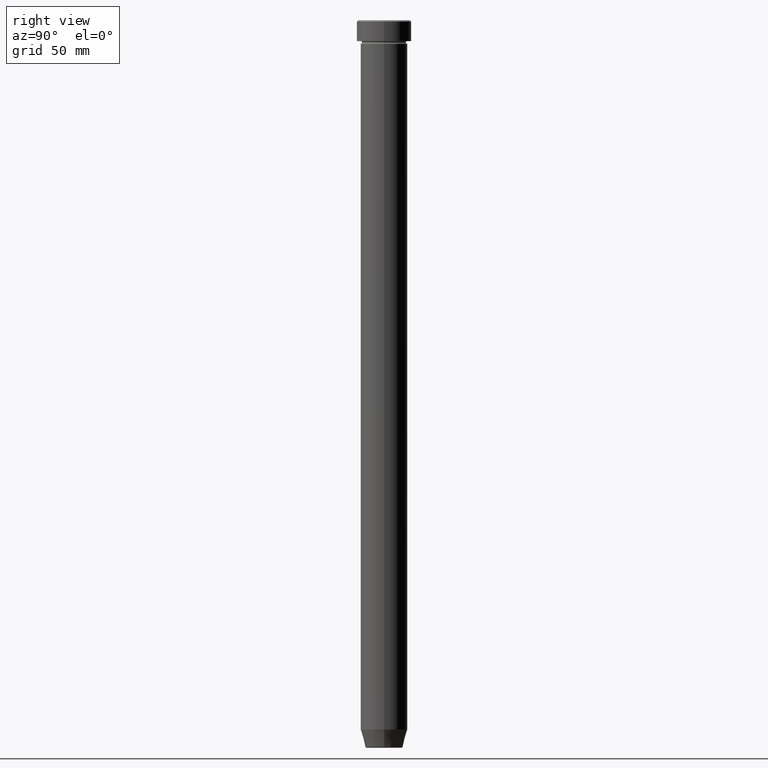
[diagram: clean part render]
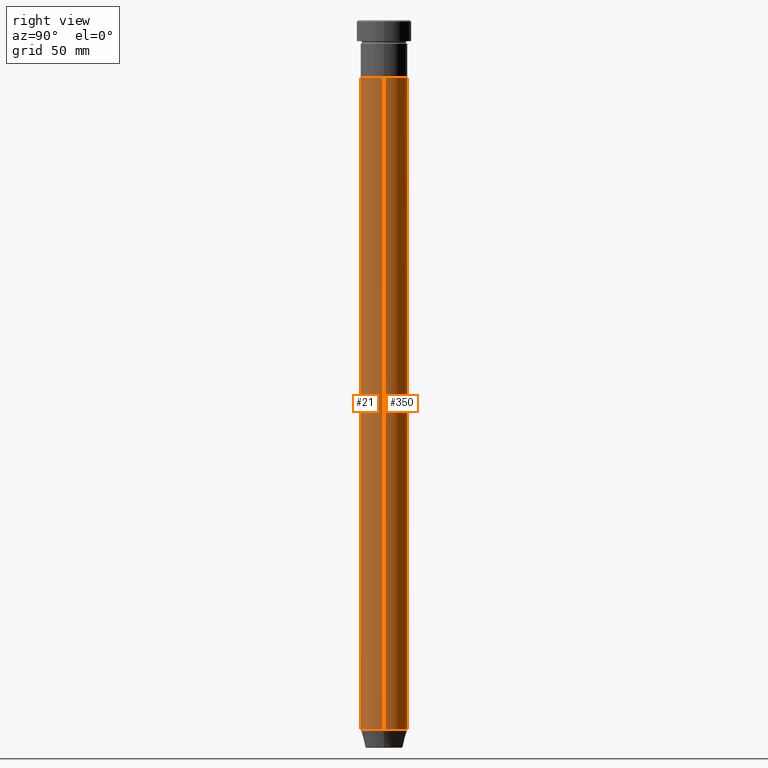
[diagram: same view with one multi-face feature highlighted, each face labeled with its STEP entity id]
A machine part, right view. The highlighted faces form ONE feature: a constant-radius fillet chain: 2 tangent blend faces with common blend radius 9 mm. The faces share edges in the B-rep.
Their STEP definitions:
[1] entity #350 (Cylinder):
#5 = ORIENTED_EDGE ( 'NONE', *, *, #468, .F. ) ;
#11 = EDGE_CURVE ( 'NONE', #19, #496, #234, .T. ) ;
#12 = ORIENTED_EDGE ( 'NONE', *, *, #284, .T. ) ;
#19 = VERTEX_POINT ( 'NONE', #82 ) ;
#23 = DIRECTION ( 'NONE',  ( -0.000000000000000000, -0.000000000000000000, 1.000000000000000000 ) ) ;
#33 = CARTESIAN_POINT ( 'NONE',  ( 0.000000000000000000, 0.000000000000000000, 0.000000000000000000 ) ) ;
#38 = VERTEX_POINT ( 'NONE', #85 ) ;
#71 = FACE_OUTER_BOUND ( 'NONE', #233, .T. ) ;
#81 = DIRECTION ( 'NONE',  ( -0.000000000000000000, -0.000000000000000000, 1.000000000000000000 ) ) ;
#82 = CARTESIAN_POINT ( 'NONE',  ( 9.000000000000000000, 0.000000000000000000, -273.0000000000000000 ) ) ;
#84 = CARTESIAN_POINT ( 'NONE',  ( -9.000000000000000000, 1.102182119232617714E-15, -273.0000000000000000 ) ) ;
#85 = CARTESIAN_POINT ( 'NONE',  ( -9.000000000000000000, 1.102182119232617714E-15, -22.00000000000000000 ) ) ;
#103 = DIRECTION ( 'NONE',  ( -0.000000000000000000, -0.000000000000000000, 1.000000000000000000 ) ) ;
#165 = EDGE_CURVE ( 'NONE', #19, #320, #324, .T. ) ;
#233 = EDGE_LOOP ( 'NONE', ( #336, #12, #5, #330 ) ) ;
#234 = CIRCLE ( 'NONE', #443, 9.000000000000000000 ) ;
#256 = CYLINDRICAL_SURFACE ( 'NONE', #470, 9.000000000000000000 ) ;
#265 = DIRECTION ( 'NONE',  ( 1.000000000000000000, 0.000000000000000000, 0.000000000000000000 ) ) ;
#284 = EDGE_CURVE ( 'NONE', #496, #38, #339, .T. ) ;
#294 = DIRECTION ( 'NONE',  ( -0.000000000000000000, -0.000000000000000000, 1.000000000000000000 ) ) ;
#304 = CARTESIAN_POINT ( 'NONE',  ( -9.000000000000000000, 1.102182119232617714E-15, 0.000000000000000000 ) ) ;
#305 = CIRCLE ( 'NONE', #394, 9.000000000000000000 ) ;
#316 = VECTOR ( 'NONE', #23, 1000.000000000000000 ) ;
#317 = DIRECTION ( 'NONE',  ( 1.000000000000000000, 0.000000000000000000, 0.000000000000000000 ) ) ;
#320 = VERTEX_POINT ( 'NONE', #580 ) ;
#324 = LINE ( 'NONE', #478, #376 ) ;
#330 = ORIENTED_EDGE ( 'NONE', *, *, #165, .F. ) ;
#336 = ORIENTED_EDGE ( 'NONE', *, *, #11, .T. ) ;
#339 = LINE ( 'NONE', #304, #316 ) ;
#350 = ADVANCED_FACE ( 'NONE', ( #71 ), #256, .T. ) ;
#376 = VECTOR ( 'NONE', #103, 1000.000000000000000 ) ;
#393 = DIRECTION ( 'NONE',  ( 1.000000000000000000, 0.000000000000000000, 0.000000000000000000 ) ) ;
#394 = AXIS2_PLACEMENT_3D ( 'NONE', #402, #81, #265 ) ;
#402 = CARTESIAN_POINT ( 'NONE',  ( 0.000000000000000000, 0.000000000000000000, -22.00000000000000000 ) ) ;
#443 = AXIS2_PLACEMENT_3D ( 'NONE', #506, #503, #317 ) ;
#468 = EDGE_CURVE ( 'NONE', #320, #38, #305, .T. ) ;
#470 = AXIS2_PLACEMENT_3D ( 'NONE', #33, #294, #393 ) ;
#478 = CARTESIAN_POINT ( 'NONE',  ( 9.000000000000000000, 0.000000000000000000, 0.000000000000000000 ) ) ;
#496 = VERTEX_POINT ( 'NONE', #84 ) ;
#503 = DIRECTION ( 'NONE',  ( -0.000000000000000000, -0.000000000000000000, 1.000000000000000000 ) ) ;
#506 = CARTESIAN_POINT ( 'NONE',  ( 0.000000000000000000, 0.000000000000000000, -273.0000000000000000 ) ) ;
#580 = CARTESIAN_POINT ( 'NONE',  ( 9.000000000000000000, 0.000000000000000000, -22.00000000000000000 ) ) ;
[2] entity #21 (Cylinder):
#19 = VERTEX_POINT ( 'NONE', #82 ) ;
#21 = ADVANCED_FACE ( 'NONE', ( #563 ), #138, .T. ) ;
#23 = DIRECTION ( 'NONE',  ( -0.000000000000000000, -0.000000000000000000, 1.000000000000000000 ) ) ;
#25 = CIRCLE ( 'NONE', #135, 9.000000000000000000 ) ;
#38 = VERTEX_POINT ( 'NONE', #85 ) ;
#61 = CARTESIAN_POINT ( 'NONE',  ( 0.000000000000000000, 0.000000000000000000, -273.0000000000000000 ) ) ;
#82 = CARTESIAN_POINT ( 'NONE',  ( 9.000000000000000000, 0.000000000000000000, -273.0000000000000000 ) ) ;
#84 = CARTESIAN_POINT ( 'NONE',  ( -9.000000000000000000, 1.102182119232617714E-15, -273.0000000000000000 ) ) ;
#85 = CARTESIAN_POINT ( 'NONE',  ( -9.000000000000000000, 1.102182119232617714E-15, -22.00000000000000000 ) ) ;
#103 = DIRECTION ( 'NONE',  ( -0.000000000000000000, -0.000000000000000000, 1.000000000000000000 ) ) ;
#135 = AXIS2_PLACEMENT_3D ( 'NONE', #197, #539, #384 ) ;
#138 = CYLINDRICAL_SURFACE ( 'NONE', #474, 9.000000000000000000 ) ;
#152 = AXIS2_PLACEMENT_3D ( 'NONE', #61, #573, #572 ) ;
#165 = EDGE_CURVE ( 'NONE', #19, #320, #324, .T. ) ;
#197 = CARTESIAN_POINT ( 'NONE',  ( 0.000000000000000000, 0.000000000000000000, -22.00000000000000000 ) ) ;
#200 = EDGE_CURVE ( 'NONE', #496, #19, #220, .T. ) ;
#211 = ORIENTED_EDGE ( 'NONE', *, *, #200, .T. ) ;
#220 = CIRCLE ( 'NONE', #152, 9.000000000000000000 ) ;
#266 = DIRECTION ( 'NONE',  ( 1.000000000000000000, 0.000000000000000000, 0.000000000000000000 ) ) ;
#269 = DIRECTION ( 'NONE',  ( -0.000000000000000000, -0.000000000000000000, 1.000000000000000000 ) ) ;
#284 = EDGE_CURVE ( 'NONE', #496, #38, #339, .T. ) ;
#304 = CARTESIAN_POINT ( 'NONE',  ( -9.000000000000000000, 1.102182119232617714E-15, 0.000000000000000000 ) ) ;
#307 = EDGE_CURVE ( 'NONE', #38, #320, #25, .T. ) ;
#316 = VECTOR ( 'NONE', #23, 1000.000000000000000 ) ;
#320 = VERTEX_POINT ( 'NONE', #580 ) ;
#324 = LINE ( 'NONE', #478, #376 ) ;
#339 = LINE ( 'NONE', #304, #316 ) ;
#356 = ORIENTED_EDGE ( 'NONE', *, *, #307, .F. ) ;
#376 = VECTOR ( 'NONE', #103, 1000.000000000000000 ) ;
#384 = DIRECTION ( 'NONE',  ( 1.000000000000000000, 0.000000000000000000, 0.000000000000000000 ) ) ;
#410 = CARTESIAN_POINT ( 'NONE',  ( 0.000000000000000000, 0.000000000000000000, 0.000000000000000000 ) ) ;
#457 = EDGE_LOOP ( 'NONE', ( #542, #211, #593, #356 ) ) ;
#474 = AXIS2_PLACEMENT_3D ( 'NONE', #410, #269, #266 ) ;
#478 = CARTESIAN_POINT ( 'NONE',  ( 9.000000000000000000, 0.000000000000000000, 0.000000000000000000 ) ) ;
#496 = VERTEX_POINT ( 'NONE', #84 ) ;
#539 = DIRECTION ( 'NONE',  ( -0.000000000000000000, -0.000000000000000000, 1.000000000000000000 ) ) ;
#542 = ORIENTED_EDGE ( 'NONE', *, *, #284, .F. ) ;
#563 = FACE_OUTER_BOUND ( 'NONE', #457, .T. ) ;
#572 = DIRECTION ( 'NONE',  ( 1.000000000000000000, 0.000000000000000000, 0.000000000000000000 ) ) ;
#573 = DIRECTION ( 'NONE',  ( -0.000000000000000000, -0.000000000000000000, 1.000000000000000000 ) ) ;
#580 = CARTESIAN_POINT ( 'NONE',  ( 9.000000000000000000, 0.000000000000000000, -22.00000000000000000 ) ) ;
#593 = ORIENTED_EDGE ( 'NONE', *, *, #165, .T. ) ;